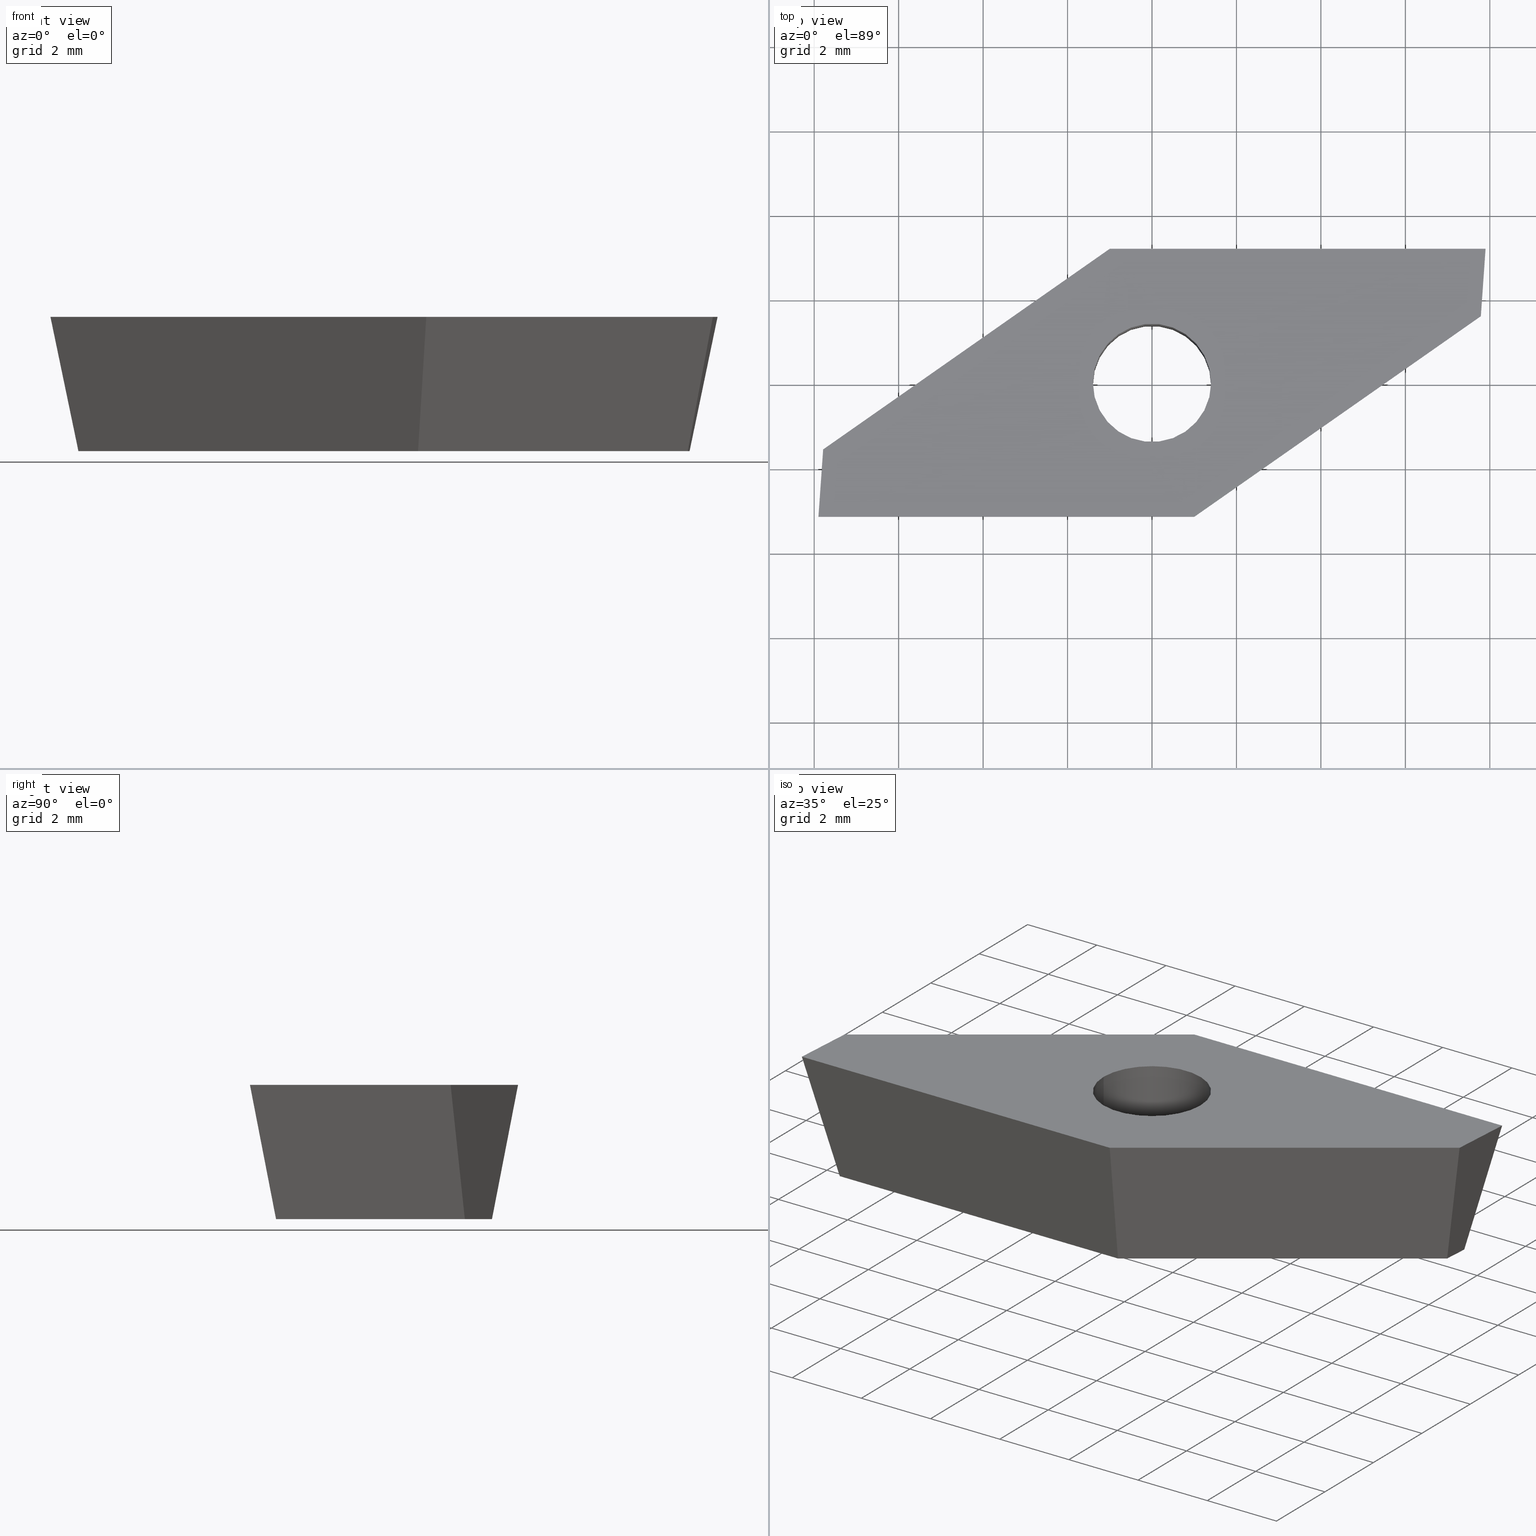
[diagram: canonical four-view strip — front | top / right | iso, engineering-drawing reading convention]
A machine part, canonical four-view strip (front | top / right | iso — engineering-drawing reading convention). The complete STEP part file that produces these views, byte-faithful:
ISO-10303-21;
HEADER;
FILE_DESCRIPTION (( 'STEP AP214' ),
    '1' );
FILE_NAME ('VP.. 1003ZZ .R.step',
    '2017-03-30T12:57:38',
    ( '' ),
    ( '' ),
    'SwSTEP 2.0',
    'SolidWorks 2016',
    '' );
FILE_SCHEMA (( 'AUTOMOTIVE_DESIGN' ));
ENDSEC;

DATA;
#1 = VECTOR ( 'NONE', #59, 1000.000000000000000 ) ;
#2 = VECTOR ( 'NONE', #54, 1000.000000000000100 ) ;
#3 = LINE ( 'NONE', #60, #1 ) ;
#4 = LINE ( 'NONE', #62, #2 ) ;
#5 = VECTOR ( 'NONE', #65, 1000.000000000000100 ) ;
#6 = EDGE_CURVE ( 'NONE', #285, #330, #196, .T. ) ;
#7 = VERTEX_POINT ( 'NONE', #110 ) ;
#8 = EDGE_LOOP ( 'NONE', ( #204, #209, #214, #217 ) ) ;
#9 = AXIS2_PLACEMENT_3D ( 'NONE', #133, #132, #345 ) ;
#10 = VERTEX_POINT ( 'NONE', #113 ) ;
#11 = ORIENTED_EDGE ( 'NONE', *, *, #70, .F. ) ;
#12 = VERTEX_POINT ( 'NONE', #316 ) ;
#13 = SURFACE_STYLE_USAGE ( .BOTH. , #25 ) ;
#14 = PRODUCT_RELATED_PRODUCT_CATEGORY ( 'part', '', ( #189 ) ) ;
#15 = LINE ( 'NONE', #53, #303 ) ;
#16 = VECTOR ( 'NONE', #68, 1000.000000000000000 ) ;
#17 = LINE ( 'NONE', #127, #184 ) ;
#18 = SURFACE_STYLE_USAGE ( .BOTH. , #136 ) ;
#19 = ORIENTED_EDGE ( 'NONE', *, *, #319, .T. ) ;
#20 = CARTESIAN_POINT ( 'NONE',  ( 7.900000000000000400, 3.175000000000000700, 0.0000000000000000000 ) ) ;
#21 = LINE ( 'NONE', #89, #16 ) ;
#22 = LINE ( 'NONE', #88, #29 ) ;
#23 = PRODUCT_DEFINITION_CONTEXT ( 'detailed design', #48, 'design' ) ;
#24 = EDGE_CURVE ( 'NONE', #292, #302, #17, .T. ) ;
#25 = SURFACE_SIDE_STYLE ('',( #172 ) ) ;
#26 = FILL_AREA_STYLE ('',( #71 ) ) ;
#27 = LINE ( 'NONE', #67, #5 ) ;
#28 = VECTOR ( 'NONE', #166, 1000.000000000000000 ) ;
#29 = VECTOR ( 'NONE', #63, 1000.000000000000100 ) ;
#30 = VECTOR ( 'NONE', #148, 1000.000000000000100 ) ;
#31 = CARTESIAN_POINT ( 'NONE',  ( 7.283376349052109500, 3.218118526079754900, -3.180000000000000200 ) ) ;
#32 = CARTESIAN_POINT ( 'NONE',  ( -1.399999999999999900, 1.714505518806294100E-016, -3.180000000000000200 ) ) ;
#33 = LINE ( 'NONE', #107, #28 ) ;
#34 = DIRECTION ( 'NONE',  ( -0.0000000000000000000, -0.0000000000000000000, 1.000000000000000000 ) ) ;
#35 = VECTOR ( 'NONE', #91, 1000.000000000000200 ) ;
#36 = CARTESIAN_POINT ( 'NONE',  ( -7.788289079147451900, -1.577459403657731600, 0.0000000000000000000 ) ) ;
#37 = DIRECTION ( 'NONE',  ( 1.000000000000000000, 0.0000000000000000000, 0.0000000000000000000 ) ) ;
#38 = DIRECTION ( 'NONE',  ( 0.0000000000000000000, 0.0000000000000000000, 1.000000000000000000 ) ) ;
#39 = UNCERTAINTY_MEASURE_WITH_UNIT (LENGTH_MEASURE( 1.000000000000000100E-005 ), #42, 'distance_accuracy_value', 'NONE');
#40 =( NAMED_UNIT ( * ) PLANE_ANGLE_UNIT ( ) SI_UNIT ( $, .RADIAN. ) );
#41 =( NAMED_UNIT ( * ) SI_UNIT ( $, .STERADIAN. ) SOLID_ANGLE_UNIT ( ) );
#42 =( LENGTH_UNIT ( ) NAMED_UNIT ( * ) SI_UNIT ( .MILLI., .METRE. ) );
#43 = CARTESIAN_POINT ( 'NONE',  ( 0.0000000000000000000, 0.0000000000000000000, 0.0000000000000000000 ) ) ;
#44 = LINE ( 'NONE', #90, #30 ) ;
#45 = DIRECTION ( 'NONE',  ( -1.000000000000000000, -9.744461978823348800E-017, -0.0000000000000000000 ) ) ;
#46 =( NAMED_UNIT ( * ) PLANE_ANGLE_UNIT ( ) SI_UNIT ( $, .RADIAN. ) );
#47 = APPLICATION_CONTEXT ( 'automotive_design' ) ;
#48 = APPLICATION_CONTEXT ( 'automotive_design' ) ;
#49 = MECHANICAL_DESIGN_GEOMETRIC_PRESENTATION_REPRESENTATION (  '', ( #117 ), #340 ) ;
#50 = LINE ( 'NONE', #20, #35 ) ;
#51 = VECTOR ( 'NONE', #82, 1000.000000000000100 ) ;
#52 =( LENGTH_UNIT ( ) NAMED_UNIT ( * ) SI_UNIT ( .MILLI., .METRE. ) );
#53 = CARTESIAN_POINT ( 'NONE',  ( -1.001073654690764600, 3.174999999999999800, 0.0000000000000000000 ) ) ;
#54 = DIRECTION ( 'NONE',  ( 0.06005326349153969300, -0.1904646183547176200, 0.9798555172570124800 ) ) ;
#55 = EDGE_CURVE ( 'NONE', #201, #12, #199, .T. ) ;
#56 = LINE ( 'NONE', #79, #69 ) ;
#57 = VECTOR ( 'NONE', #34, 1000.000000000000000 ) ;
#58 =( NAMED_UNIT ( * ) SI_UNIT ( $, .STERADIAN. ) SOLID_ANGLE_UNIT ( ) );
#59 = DIRECTION ( 'NONE',  ( 0.8191520442889951300, 0.5735764363510412700, 0.0000000000000000000 ) ) ;
#60 = CARTESIAN_POINT ( 'NONE',  ( 7.433744630409206500, 2.083801351424741500, -3.180000000000000200 ) ) ;
#61 = CARTESIAN_POINT ( 'NONE',  ( 0.0000000000000000000, 0.0000000000000000000, 0.0000000000000000000 ) ) ;
#62 = CARTESIAN_POINT ( 'NONE',  ( 1.001073654690761700, -3.174999999999999800, 4.532429341667184100E-017 ) ) ;
#63 = DIRECTION ( 'NONE',  ( -0.06005326349153970700, 0.1904646183547176200, 0.9798555172570124800 ) ) ;
#64 = CIRCLE ( 'NONE', #282, 1.399999999999999900 ) ;
#65 = DIRECTION ( 'NONE',  ( -0.1832382521941805800, 0.1036712150141736000, 0.9775868360970839700 ) ) ;
#66 = VECTOR ( 'NONE', #78, 1000.000000000000000 ) ;
#67 = CARTESIAN_POINT ( 'NONE',  ( -7.788289079147451900, -1.577459403657731600, 0.0000000000000000000 ) ) ;
#68 = DIRECTION ( 'NONE',  ( 0.1832382521941806600, -0.1036712150141735900, 0.9775868360970839700 ) ) ;
#69 = VECTOR ( 'NONE', #192, 1000.000000000000000 ) ;
#70 = EDGE_CURVE ( 'NONE', #324, #216, #187, .T. ) ;
#71 = FILL_AREA_STYLE_COLOUR ( '', #164 ) ;
#72 = VECTOR ( 'NONE', #312, 1000.000000000000100 ) ;
#73 = CYLINDRICAL_SURFACE ( 'NONE', #273, 1.399999999999999900 ) ;
#74 = CARTESIAN_POINT ( 'NONE',  ( 0.8061782088420801400, -2.556870616942053400, -3.180000000000000200 ) ) ;
#75 = DIRECTION ( 'NONE',  ( -0.5630382217072211800, 0.8041019140508022200, -0.1908089953765452500 ) ) ;
#76 = LINE ( 'NONE', #347, #66 ) ;
#77 = CARTESIAN_POINT ( 'NONE',  ( 7.900000000000000400, 3.175000000000000700, 0.0000000000000000000 ) ) ;
#78 = DIRECTION ( 'NONE',  ( -0.06975647374412606600, -0.9975640502598242000, -0.0000000000000000000 ) ) ;
#79 = CARTESIAN_POINT ( 'NONE',  ( 1.001073654690762600, -3.174999999999999800, 0.0000000000000000000 ) ) ;
#80 = LINE ( 'NONE', #32, #57 ) ;
#81 = CARTESIAN_POINT ( 'NONE',  ( -7.900000000000002100, -3.175000000000000700, 0.0000000000000000000 ) ) ;
#82 = DIRECTION ( 'NONE',  ( 0.06975647374412545500, 0.9975640502598242000, 0.0000000000000000000 ) ) ;
#83 = DIRECTION ( 'NONE',  ( 1.000000000000000000, 0.0000000000000000000, 0.0000000000000000000 ) ) ;
#84 = DIRECTION ( 'NONE',  ( 0.0000000000000000000, 0.0000000000000000000, 1.000000000000000000 ) ) ;
#85 = PRODUCT_CONTEXT ( 'NONE', #152, 'mechanical' ) ;
#86 = APPLICATION_PROTOCOL_DEFINITION ( 'draft international standard', 'automotive_design', 1998, #152 ) ;
#87 = CARTESIAN_POINT ( 'NONE',  ( 0.0000000000000000000, 0.0000000000000000000, 0.0000000000000000000 ) ) ;
#88 = CARTESIAN_POINT ( 'NONE',  ( -1.001073654690764600, 3.174999999999999800, 0.0000000000000000000 ) ) ;
#89 = CARTESIAN_POINT ( 'NONE',  ( 7.788289079147451100, 1.577459403657729400, 3.148184459698170000E-018 ) ) ;
#90 = CARTESIAN_POINT ( 'NONE',  ( -7.900000000000002100, -3.175000000000000700, 0.0000000000000000000 ) ) ;
#91 = DIRECTION ( 'NONE',  ( 0.06975647374412544100, 0.9975640502598242000, -0.0000000000000000000 ) ) ;
#92 = PRODUCT_DEFINITION_SHAPE ( 'NONE', 'NONE',  #289 ) ;
#93 = CARTESIAN_POINT ( 'NONE',  ( 0.0000000000000000000, 0.0000000000000000000, -3.180000000000000200 ) ) ;
#94 = APPLICATION_PROTOCOL_DEFINITION ( 'draft international standard', 'automotive_design', 1998, #47 ) ;
#95 = DIRECTION ( 'NONE',  ( -0.0000000000000000000, -0.0000000000000000000, 1.000000000000000000 ) ) ;
#96 = PLANE ( 'NONE',  #281 ) ;
#97 = PLANE ( 'NONE',  #279 ) ;
#98 = CARTESIAN_POINT ( 'NONE',  ( -7.788289079147451900, -1.577459403657731600, 0.0000000000000000000 ) ) ;
#99 = CARTESIAN_POINT ( 'NONE',  ( -7.283376349052111300, -3.218118526079755300, -3.180000000000000200 ) ) ;
#100 = DIRECTION ( 'NONE',  ( -0.0000000000000000000, -0.0000000000000000000, 1.000000000000000000 ) ) ;
#101 = PRESENTATION_STYLE_ASSIGNMENT (( #18 ) ) ;
#102 = SURFACE_STYLE_FILL_AREA ( #355 ) ;
#103 = PLANE ( 'NONE',  #309 ) ;
#104 =( NAMED_UNIT ( * ) SI_UNIT ( $, .STERADIAN. ) SOLID_ANGLE_UNIT ( ) );
#105 = CARTESIAN_POINT ( 'NONE',  ( 1.001073654690762600, -3.174999999999999800, 0.0000000000000000000 ) ) ;
#106 = CARTESIAN_POINT ( 'NONE',  ( 1.399999999999999900, 0.0000000000000000000, -3.180000000000000200 ) ) ;
#107 = CARTESIAN_POINT ( 'NONE',  ( -1.001073654690764600, 2.556870616942053400, -3.180000000000000200 ) ) ;
#108 =( NAMED_UNIT ( * ) PLANE_ANGLE_UNIT ( ) SI_UNIT ( $, .RADIAN. ) );
#109 = DIRECTION ( 'NONE',  ( 1.000000000000000000, 9.744461978823350000E-017, 0.0000000000000000000 ) ) ;
#110 = CARTESIAN_POINT ( 'NONE',  ( -1.001073654690764600, 3.174999999999999800, 0.0000000000000000000 ) ) ;
#111 = PRODUCT_DEFINITION_SHAPE ( 'NONE', 'NONE',  #318 ) ;
#112 = DIRECTION ( 'NONE',  ( 0.2004640746510997800, 0.1869357738407769500, 0.9617011860410842300 ) ) ;
#113 = CARTESIAN_POINT ( 'NONE',  ( -1.399999999999999900, 1.714505518806294100E-016, -3.180000000000000200 ) ) ;
#114 = DIRECTION ( 'NONE',  ( 0.8191520442889952400, 0.5735764363510412700, -0.0000000000000000000 ) ) ;
#115 = CARTESIAN_POINT ( 'NONE',  ( 1.399999999999999900, 0.0000000000000000000, -3.180000000000000200 ) ) ;
#116 = CARTESIAN_POINT ( 'NONE',  ( 1.001073654690762600, -2.556870616942053400, -3.180000000000000200 ) ) ;
#117 = STYLED_ITEM ( 'NONE', ( #226 ), #249 ) ;
#118 = CYLINDRICAL_SURFACE ( 'NONE', #267, 1.399999999999999900 ) ;
#119 = CARTESIAN_POINT ( 'NONE',  ( -7.788289079147451900, -1.577459403657731600, 0.0000000000000000000 ) ) ;
#120 = CARTESIAN_POINT ( 'NONE',  ( 0.0000000000000000000, 0.0000000000000000000, -3.180000000000000200 ) ) ;
#121 = EDGE_CURVE ( 'NONE', #243, #285, #182, .T. ) ;
#122 = DIRECTION ( 'NONE',  ( 1.000000000000000000, 0.0000000000000000000, 0.0000000000000000000 ) ) ;
#123 = FACE_OUTER_BOUND ( 'NONE', #297, .T. ) ;
#124 = LINE ( 'NONE', #119, #72 ) ;
#125 = EDGE_LOOP ( 'NONE', ( #250, #252, #253, #255 ) ) ;
#126 = PLANE ( 'NONE',  #264 ) ;
#127 = CARTESIAN_POINT ( 'NONE',  ( 7.900000000000000400, 3.175000000000000700, 0.0000000000000000000 ) ) ;
#128 = COLOUR_RGB ( '',0.7960784313725489700, 0.8235294117647058400, 0.9372549019607843100 ) ;
#129 = LINE ( 'NONE', #31, #51 ) ;
#130 = FACE_OUTER_BOUND ( 'NONE', #299, .T. ) ;
#131 = CARTESIAN_POINT ( 'NONE',  ( 7.788289079147451100, 1.577459403657729400, 0.0000000000000000000 ) ) ;
#132 = DIRECTION ( 'NONE',  ( 0.0000000000000000000, 0.0000000000000000000, 1.000000000000000000 ) ) ;
#133 = CARTESIAN_POINT ( 'NONE',  ( 0.0000000000000000000, 0.0000000000000000000, 0.0000000000000000000 ) ) ;
#134 = CARTESIAN_POINT ( 'NONE',  ( 0.0000000000000000000, 0.0000000000000000000, 0.0000000000000000000 ) ) ;
#135 = SHAPE_DEFINITION_REPRESENTATION ( #111, #249 ) ;
#136 = SURFACE_SIDE_STYLE ('',( #102 ) ) ;
#137 = MECHANICAL_DESIGN_GEOMETRIC_PRESENTATION_REPRESENTATION (  '', ( #341 ), #183 ) ;
#138 = DIRECTION ( 'NONE',  ( -0.1912579077465619300, 0.0000000000000000000, -0.9815398171874677400 ) ) ;
#139 = CARTESIAN_POINT ( 'NONE',  ( -7.433744630409207400, -2.083801351424743800, -3.180000000000000200 ) ) ;
#140 = PRODUCT ( 'VP.. 1003ZZ .R', 'VP.. 1003ZZ .R', '', ( #210 ) ) ;
#141 = DIRECTION ( 'NONE',  ( 0.0000000000000000000, 0.0000000000000000000, -1.000000000000000000 ) ) ;
#142 = CARTESIAN_POINT ( 'NONE',  ( -0.8061782088420828000, 2.556870616942053400, -3.180000000000000200 ) ) ;
#143 = CARTESIAN_POINT ( 'NONE',  ( 7.900000000000000400, 3.175000000000000700, 0.0000000000000000000 ) ) ;
#144 = PLANE ( 'NONE',  #351 ) ;
#145 = PRODUCT_DEFINITION_CONTEXT ( 'detailed design', #47, 'design' ) ;
#146 = PLANE ( 'NONE',  #335 ) ;
#147 = PLANE ( 'NONE',  #352 ) ;
#148 = DIRECTION ( 'NONE',  ( -0.2004640746510998900, -0.1869357738407769500, 0.9617011860410842300 ) ) ;
#149 = CIRCLE ( 'NONE', #9, 1.399999999999999900 ) ;
#150 = DIRECTION ( 'NONE',  ( 0.0000000000000000000, 0.1908089953765452800, -0.9816271834476639800 ) ) ;
#151 = UNCERTAINTY_MEASURE_WITH_UNIT (LENGTH_MEASURE( 1.000000000000000100E-005 ), #52, 'distance_accuracy_value', 'NONE');
#152 = APPLICATION_CONTEXT ( 'automotive_design' ) ;
#153 = DIRECTION ( 'NONE',  ( -0.8191520442889950200, -0.5735764363510415000, 0.0000000000000000000 ) ) ;
#154 = FACE_OUTER_BOUND ( 'NONE', #357, .T. ) ;
#155 = DIRECTION ( 'NONE',  ( -1.000000000000000000, 0.0000000000000000000, -0.0000000000000000000 ) ) ;
#156 = CARTESIAN_POINT ( 'NONE',  ( -7.900000000000002100, -3.175000000000000700, 0.0000000000000000000 ) ) ;
#157 = FACE_OUTER_BOUND ( 'NONE', #321, .T. ) ;
#158 = FACE_OUTER_BOUND ( 'NONE', #307, .T. ) ;
#159 = LINE ( 'NONE', #139, #167 ) ;
#160 = DIRECTION ( 'NONE',  ( -0.8191520442889950200, -0.5735764363510415000, 0.0000000000000000000 ) ) ;
#161 = FACE_OUTER_BOUND ( 'NONE', #295, .T. ) ;
#162 = PLANE ( 'NONE',  #343 ) ;
#163 = DIRECTION ( 'NONE',  ( -1.000000000000000000, 0.0000000000000000000, -0.0000000000000000000 ) ) ;
#164 = COLOUR_RGB ( '',0.7960784313725489700, 0.8235294117647058400, 0.9372549019607843100 ) ;
#165 = FACE_OUTER_BOUND ( 'NONE', #310, .T. ) ;
#166 = DIRECTION ( 'NONE',  ( -1.000000000000000000, -9.744461978823350000E-017, 0.0000000000000000000 ) ) ;
#167 = VECTOR ( 'NONE', #153, 1000.000000000000000 ) ;
#168 = FACE_BOUND ( 'NONE', #320, .T. ) ;
#169 = FACE_OUTER_BOUND ( 'NONE', #8, .T. ) ;
#170 = APPLICATION_PROTOCOL_DEFINITION ( 'draft international standard', 'automotive_design', 1998, #225 ) ;
#171 = CIRCLE ( 'NONE', #205, 1.399999999999999900 ) ;
#172 = SURFACE_STYLE_FILL_AREA ( #26 ) ;
#173 = FACE_OUTER_BOUND ( 'NONE', #125, .T. ) ;
#174 = DIRECTION ( 'NONE',  ( 0.0000000000000000000, 0.0000000000000000000, 1.000000000000000000 ) ) ;
#175 = FACE_BOUND ( 'NONE', #304, .T. ) ;
#176 = VECTOR ( 'NONE', #200, 1000.000000000000100 ) ;
#177 = EDGE_CURVE ( 'NONE', #324, #10, #180, .T. ) ;
#178 = FACE_OUTER_BOUND ( 'NONE', #308, .T. ) ;
#179 = VECTOR ( 'NONE', #100, 1000.000000000000000 ) ;
#180 = CIRCLE ( 'NONE', #181, 1.399999999999999900 ) ;
#181 = AXIS2_PLACEMENT_3D ( 'NONE', #241, #237, #245 ) ;
#182 = LINE ( 'NONE', #99, #176 ) ;
#183 =( GEOMETRIC_REPRESENTATION_CONTEXT ( 3 ) GLOBAL_UNCERTAINTY_ASSIGNED_CONTEXT ( ( #331 ) ) GLOBAL_UNIT_ASSIGNED_CONTEXT ( ( #287, #108, #104 ) ) REPRESENTATION_CONTEXT ( 'NONE', 'WORKASPACE' ) );
#184 = VECTOR ( 'NONE', #112, 1000.000000000000100 ) ;
#185 = CARTESIAN_POINT ( 'NONE',  ( 1.399999999999999900, 0.0000000000000000000, 0.0000000000000000000 ) ) ;
#186 = DIRECTION ( 'NONE',  ( 1.000000000000000000, 0.0000000000000000000, 0.0000000000000000000 ) ) ;
#187 = LINE ( 'NONE', #115, #179 ) ;
#188 = APPLICATION_PROTOCOL_DEFINITION ( 'draft international standard', 'automotive_design', 1998, #48 ) ;
#189 = PRODUCT ( 'VP.. 1003ZZ .R', 'VP.. 1003ZZ .R', '', ( #85 ) ) ;
#190 = VECTOR ( 'NONE', #114, 1000.000000000000100 ) ;
#191 = ADVANCED_FACE ( 'NONE', ( #178 ), #97, .T. ) ;
#192 = DIRECTION ( 'NONE',  ( 1.000000000000000000, 9.744461978823348800E-017, -0.0000000000000000000 ) ) ;
#193 = VECTOR ( 'NONE', #109, 1000.000000000000000 ) ;
#194 = CARTESIAN_POINT ( 'NONE',  ( -1.001073654690764600, 3.174999999999999800, 0.0000000000000000000 ) ) ;
#195 = CARTESIAN_POINT ( 'NONE',  ( 7.192231910145610000, 1.914692324122640600, -3.180000000000000200 ) ) ;
#196 = LINE ( 'NONE', #116, #193 ) ;
#197 = EDGE_CURVE ( 'NONE', #10, #324, #171, .T. ) ;
#198 = ADVANCED_FACE ( 'NONE', ( #173 ), #103, .T. ) ;
#199 = LINE ( 'NONE', #131, #190 ) ;
#200 = DIRECTION ( 'NONE',  ( -0.06975647374412608000, -0.9975640502598242000, 0.0000000000000000000 ) ) ;
#201 = VERTEX_POINT ( 'NONE', #325 ) ;
#202 = ORIENTED_EDGE ( 'NONE', *, *, #322, .T. ) ;
#203 = ADVANCED_FACE ( 'NONE', ( #169 ), #162, .T. ) ;
#204 = ORIENTED_EDGE ( 'NONE', *, *, #244, .F. ) ;
#205 = AXIS2_PLACEMENT_3D ( 'NONE', #333, #334, #336 ) ;
#206 = ORIENTED_EDGE ( 'NONE', *, *, #121, .T. ) ;
#207 = ADVANCED_FACE ( 'NONE', ( #175, #165 ), #147, .T. ) ;
#208 = EDGE_CURVE ( 'NONE', #212, #243, #159, .T. ) ;
#209 = ORIENTED_EDGE ( 'NONE', *, *, #339, .F. ) ;
#210 = PRODUCT_CONTEXT ( 'NONE', #225, 'mechanical' ) ;
#211 = ADVANCED_FACE ( 'NONE', ( #161 ), #144, .T. ) ;
#212 = VERTEX_POINT ( 'NONE', #142 ) ;
#213 = CARTESIAN_POINT ( 'NONE',  ( 7.788289079147451100, 1.577459403657729400, 0.0000000000000000000 ) ) ;
#214 = ORIENTED_EDGE ( 'NONE', *, *, #208, .T. ) ;
#215 = ADVANCED_FACE ( 'NONE', ( #168, #157 ), #146, .F. ) ;
#216 = VERTEX_POINT ( 'NONE', #185 ) ;
#217 = ORIENTED_EDGE ( 'NONE', *, *, #332, .T. ) ;
#218 = ADVANCED_FACE ( 'NONE', ( #154 ), #126, .T. ) ;
#219 = ORIENTED_EDGE ( 'NONE', *, *, #356, .F. ) ;
#220 = DIRECTION ( 'NONE',  ( 0.8191520442889951300, 0.5735764363510412700, 0.0000000000000000000 ) ) ;
#221 = EDGE_CURVE ( 'NONE', #216, #240, #149, .T. ) ;
#222 = ORIENTED_EDGE ( 'NONE', *, *, #24, .F. ) ;
#223 = ADVANCED_FACE ( 'NONE', ( #158 ), #96, .T. ) ;
#224 = ADVANCED_FACE ( 'NONE', ( #130 ), #118, .F. ) ;
#225 = APPLICATION_CONTEXT ( 'automotive_design' ) ;
#226 = PRESENTATION_STYLE_ASSIGNMENT (( #13 ) ) ;
#227 = MANIFOLD_SOLID_BREP ( 'Schnitt-Linear austragen1', #346 ) ;
#228 = ORIENTED_EDGE ( 'NONE', *, *, #323, .T. ) ;
#229 = ADVANCED_FACE ( 'NONE', ( #123 ), #73, .F. ) ;
#230 = DIRECTION ( 'NONE',  ( 0.5630382217072209500, -0.8041019140508023400, -0.1908089953765452500 ) ) ;
#231 = DIRECTION ( 'NONE',  ( 1.000000000000000000, 0.0000000000000000000, 0.0000000000000000000 ) ) ;
#232 = DIRECTION ( 'NONE',  ( 0.0000000000000000000, 0.0000000000000000000, -1.000000000000000000 ) ) ;
#233 = ORIENTED_EDGE ( 'NONE', *, *, #339, .T. ) ;
#234 = ORIENTED_EDGE ( 'NONE', *, *, #319, .F. ) ;
#235 = ORIENTED_EDGE ( 'NONE', *, *, #328, .F. ) ;
#236 = AXIS2_PLACEMENT_3D ( 'NONE', #61, #174, #186 ) ;
#237 = DIRECTION ( 'NONE',  ( 0.0000000000000000000, 0.0000000000000000000, 1.000000000000000000 ) ) ;
#238 = ORIENTED_EDGE ( 'NONE', *, *, #313, .T. ) ;
#239 = ORIENTED_EDGE ( 'NONE', *, *, #24, .T. ) ;
#240 = VERTEX_POINT ( 'NONE', #296 ) ;
#241 = CARTESIAN_POINT ( 'NONE',  ( 0.0000000000000000000, 0.0000000000000000000, -3.180000000000000200 ) ) ;
#242 = ORIENTED_EDGE ( 'NONE', *, *, #55, .F. ) ;
#243 = VERTEX_POINT ( 'NONE', #300 ) ;
#244 = EDGE_CURVE ( 'NONE', #7, #294, #124, .T. ) ;
#245 = DIRECTION ( 'NONE',  ( 1.000000000000000000, 0.0000000000000000000, 0.0000000000000000000 ) ) ;
#246 = ORIENTED_EDGE ( 'NONE', *, *, #342, .F. ) ;
#247 = ORIENTED_EDGE ( 'NONE', *, *, #349, .T. ) ;
#248 = ORIENTED_EDGE ( 'NONE', *, *, #328, .T. ) ;
#249 = ADVANCED_BREP_SHAPE_REPRESENTATION ( 'VP.. 1003ZZ .R', ( #227, #284 ), #277 ) ;
#250 = ORIENTED_EDGE ( 'NONE', *, *, #317, .F. ) ;
#251 = ORIENTED_EDGE ( 'NONE', *, *, #286, .F. ) ;
#252 = ORIENTED_EDGE ( 'NONE', *, *, #322, .F. ) ;
#253 = ORIENTED_EDGE ( 'NONE', *, *, #6, .T. ) ;
#254 = FILL_AREA_STYLE_COLOUR ( '', #128 ) ;
#255 = ORIENTED_EDGE ( 'NONE', *, *, #342, .T. ) ;
#256 = ORIENTED_EDGE ( 'NONE', *, *, #177, .T. ) ;
#257 = ORIENTED_EDGE ( 'NONE', *, *, #197, .T. ) ;
#258 = PRODUCT_DEFINITION_FORMATION_WITH_SPECIFIED_SOURCE ( 'ANY', '', #189, .NOT_KNOWN. ) ;
#259 = ORIENTED_EDGE ( 'NONE', *, *, #121, .F. ) ;
#260 = ORIENTED_EDGE ( 'NONE', *, *, #208, .F. ) ;
#261 = ORIENTED_EDGE ( 'NONE', *, *, #323, .F. ) ;
#262 = ORIENTED_EDGE ( 'NONE', *, *, #313, .F. ) ;
#263 = ORIENTED_EDGE ( 'NONE', *, *, #349, .F. ) ;
#264 = AXIS2_PLACEMENT_3D ( 'NONE', #156, #338, #274 ) ;
#265 = ORIENTED_EDGE ( 'NONE', *, *, #332, .F. ) ;
#266 = ORIENTED_EDGE ( 'NONE', *, *, #6, .F. ) ;
#267 = AXIS2_PLACEMENT_3D ( 'NONE', #353, #95, #122 ) ;
#268 = DIRECTION ( 'NONE',  ( -9.565428766485213700E-017, 0.9816271834476639800, -0.1908089953765452800 ) ) ;
#269 = ORIENTED_EDGE ( 'NONE', *, *, #221, .F. ) ;
#270 = ORIENTED_EDGE ( 'NONE', *, *, #326, .F. ) ;
#271 = ORIENTED_EDGE ( 'NONE', *, *, #286, .T. ) ;
#272 = ORIENTED_EDGE ( 'NONE', *, *, #317, .T. ) ;
#273 = AXIS2_PLACEMENT_3D ( 'NONE', #120, #350, #231 ) ;
#274 = DIRECTION ( 'NONE',  ( -0.1912579077465619300, 0.0000000000000000000, 0.9815398171874677400 ) ) ;
#275 = ORIENTED_EDGE ( 'NONE', *, *, #55, .T. ) ;
#276 = DIRECTION ( 'NONE',  ( 0.9792359889651950400, -0.06847485084868677700, -0.1908089953765452500 ) ) ;
#277 =( GEOMETRIC_REPRESENTATION_CONTEXT ( 3 ) GLOBAL_UNCERTAINTY_ASSIGNED_CONTEXT ( ( #39 ) ) GLOBAL_UNIT_ASSIGNED_CONTEXT ( ( #42, #40, #58 ) ) REPRESENTATION_CONTEXT ( 'NONE', 'WORKASPACE' ) );
#278 = ORIENTED_EDGE ( 'NONE', *, *, #356, .T. ) ;
#279 = AXIS2_PLACEMENT_3D ( 'NONE', #213, #230, #220 ) ;
#280 = ORIENTED_EDGE ( 'NONE', *, *, #244, .T. ) ;
#281 = AXIS2_PLACEMENT_3D ( 'NONE', #194, #268, #348 ) ;
#282 = AXIS2_PLACEMENT_3D ( 'NONE', #87, #84, #83 ) ;
#283 = ORIENTED_EDGE ( 'NONE', *, *, #305, .F. ) ;
#284 = AXIS2_PLACEMENT_3D ( 'NONE', #43, #38, #37 ) ;
#285 = VERTEX_POINT ( 'NONE', #298 ) ;
#286 = EDGE_CURVE ( 'NONE', #294, #327, #76, .T. ) ;
#287 =( LENGTH_UNIT ( ) NAMED_UNIT ( * ) SI_UNIT ( .MILLI., .METRE. ) );
#288 = ORIENTED_EDGE ( 'NONE', *, *, #177, .F. ) ;
#289 = PRODUCT_DEFINITION ( 'UNKNOWN', '', #354, #145 ) ;
#290 = ORIENTED_EDGE ( 'NONE', *, *, #70, .T. ) ;
#291 = ORIENTED_EDGE ( 'NONE', *, *, #221, .T. ) ;
#292 = VERTEX_POINT ( 'NONE', #315 ) ;
#293 = PRESENTATION_LAYER_ASSIGNMENT (  '', '', ( #117 ) ) ;
#294 = VERTEX_POINT ( 'NONE', #36 ) ;
#295 = EDGE_LOOP ( 'NONE', ( #234, #235, #238, #239 ) ) ;
#296 = CARTESIAN_POINT ( 'NONE',  ( -1.399999999999999900, 1.714505518806294100E-016, 0.0000000000000000000 ) ) ;
#297 = EDGE_LOOP ( 'NONE', ( #311, #314, #301, #11 ) ) ;
#298 = CARTESIAN_POINT ( 'NONE',  ( -7.237137390861799500, -2.556870616942054300, -3.180000000000000200 ) ) ;
#299 = EDGE_LOOP ( 'NONE', ( #283, #288, #290, #291 ) ) ;
#300 = CARTESIAN_POINT ( 'NONE',  ( -7.192231910145610900, -1.914692324122642800, -3.180000000000000200 ) ) ;
#301 = ORIENTED_EDGE ( 'NONE', *, *, #326, .T. ) ;
#302 = VERTEX_POINT ( 'NONE', #77 ) ;
#303 = VECTOR ( 'NONE', #45, 1000.000000000000000 ) ;
#304 = EDGE_LOOP ( 'NONE', ( #256, #257 ) ) ;
#305 = EDGE_CURVE ( 'NONE', #10, #240, #80, .T. ) ;
#306 = VERTEX_POINT ( 'NONE', #195 ) ;
#307 = EDGE_LOOP ( 'NONE', ( #219, #222, #228, #233 ) ) ;
#308 = EDGE_LOOP ( 'NONE', ( #242, #246, #247, #248 ) ) ;
#309 = AXIS2_PLACEMENT_3D ( 'NONE', #105, #337, #150 ) ;
#310 = EDGE_LOOP ( 'NONE', ( #259, #260, #261, #262, #263, #266 ) ) ;
#311 = ORIENTED_EDGE ( 'NONE', *, *, #197, .F. ) ;
#312 = DIRECTION ( 'NONE',  ( -0.8191520442889951300, -0.5735764363510415000, -0.0000000000000000000 ) ) ;
#313 = EDGE_CURVE ( 'NONE', #306, #292, #129, .T. ) ;
#314 = ORIENTED_EDGE ( 'NONE', *, *, #305, .T. ) ;
#315 = CARTESIAN_POINT ( 'NONE',  ( 7.237137390861797700, 2.556870616942054300, -3.180000000000000200 ) ) ;
#316 = CARTESIAN_POINT ( 'NONE',  ( 7.788289079147451100, 1.577459403657729400, 0.0000000000000000000 ) ) ;
#317 = EDGE_CURVE ( 'NONE', #327, #201, #56, .T. ) ;
#318 = PRODUCT_DEFINITION ( 'UNKNOWN', '', #258, #23 ) ;
#319 = EDGE_CURVE ( 'NONE', #12, #302, #50, .T. ) ;
#320 = EDGE_LOOP ( 'NONE', ( #269, #270 ) ) ;
#321 = EDGE_LOOP ( 'NONE', ( #271, #272, #275, #19, #278, #280 ) ) ;
#322 = EDGE_CURVE ( 'NONE', #285, #327, #44, .T. ) ;
#323 = EDGE_CURVE ( 'NONE', #292, #212, #33, .T. ) ;
#324 = VERTEX_POINT ( 'NONE', #106 ) ;
#325 = CARTESIAN_POINT ( 'NONE',  ( 1.001073654690762600, -3.174999999999999800, 0.0000000000000000000 ) ) ;
#326 = EDGE_CURVE ( 'NONE', #240, #216, #64, .T. ) ;
#327 = VERTEX_POINT ( 'NONE', #81 ) ;
#328 = EDGE_CURVE ( 'NONE', #306, #12, #21, .T. ) ;
#329 = PRODUCT_RELATED_PRODUCT_CATEGORY ( 'part', '', ( #140 ) ) ;
#330 = VERTEX_POINT ( 'NONE', #74 ) ;
#331 = UNCERTAINTY_MEASURE_WITH_UNIT (LENGTH_MEASURE( 1.000000000000000100E-005 ), #287, 'distance_accuracy_value', 'NONE');
#332 = EDGE_CURVE ( 'NONE', #243, #294, #27, .T. ) ;
#333 = CARTESIAN_POINT ( 'NONE',  ( 0.0000000000000000000, 0.0000000000000000000, -3.180000000000000200 ) ) ;
#334 = DIRECTION ( 'NONE',  ( 0.0000000000000000000, 0.0000000000000000000, 1.000000000000000000 ) ) ;
#335 = AXIS2_PLACEMENT_3D ( 'NONE', #134, #141, #155 ) ;
#336 = DIRECTION ( 'NONE',  ( 1.000000000000000000, 0.0000000000000000000, 0.0000000000000000000 ) ) ;
#337 = DIRECTION ( 'NONE',  ( 9.565428766485213700E-017, -0.9816271834476639800, -0.1908089953765452800 ) ) ;
#338 = DIRECTION ( 'NONE',  ( -0.9792359889651950400, 0.06847485084868740200, -0.1908089953765452800 ) ) ;
#339 = EDGE_CURVE ( 'NONE', #212, #7, #22, .T. ) ;
#340 =( GEOMETRIC_REPRESENTATION_CONTEXT ( 3 ) GLOBAL_UNCERTAINTY_ASSIGNED_CONTEXT ( ( #151 ) ) GLOBAL_UNIT_ASSIGNED_CONTEXT ( ( #52, #46, #41 ) ) REPRESENTATION_CONTEXT ( 'NONE', 'WORKASPACE' ) );
#341 = STYLED_ITEM ( 'NONE', ( #101 ), #227 ) ;
#342 = EDGE_CURVE ( 'NONE', #330, #201, #4, .T. ) ;
#343 = AXIS2_PLACEMENT_3D ( 'NONE', #98, #75, #160 ) ;
#344 = PRESENTATION_LAYER_ASSIGNMENT (  '', '', ( #341 ) ) ;
#345 = DIRECTION ( 'NONE',  ( 1.000000000000000000, 0.0000000000000000000, 0.0000000000000000000 ) ) ;
#346 = CLOSED_SHELL ( 'NONE', ( #229, #218, #203, #223, #211, #191, #198, #207, #215, #224 ) ) ;
#347 = CARTESIAN_POINT ( 'NONE',  ( -7.900000000000002100, -3.175000000000000700, 0.0000000000000000000 ) ) ;
#348 = DIRECTION ( 'NONE',  ( 0.0000000000000000000, 0.1908089953765452800, 0.9816271834476639800 ) ) ;
#349 = EDGE_CURVE ( 'NONE', #330, #306, #3, .T. ) ;
#350 = DIRECTION ( 'NONE',  ( -0.0000000000000000000, -0.0000000000000000000, 1.000000000000000000 ) ) ;
#351 = AXIS2_PLACEMENT_3D ( 'NONE', #143, #276, #138 ) ;
#352 = AXIS2_PLACEMENT_3D ( 'NONE', #93, #232, #163 ) ;
#353 = CARTESIAN_POINT ( 'NONE',  ( 0.0000000000000000000, 0.0000000000000000000, -3.180000000000000200 ) ) ;
#354 = PRODUCT_DEFINITION_FORMATION_WITH_SPECIFIED_SOURCE ( 'ANY', '', #140, .NOT_KNOWN. ) ;
#355 = FILL_AREA_STYLE ('',( #254 ) ) ;
#356 = EDGE_CURVE ( 'NONE', #302, #7, #15, .T. ) ;
#357 = EDGE_LOOP ( 'NONE', ( #251, #265, #206, #202 ) ) ;
ENDSEC;
END-ISO-10303-21;
